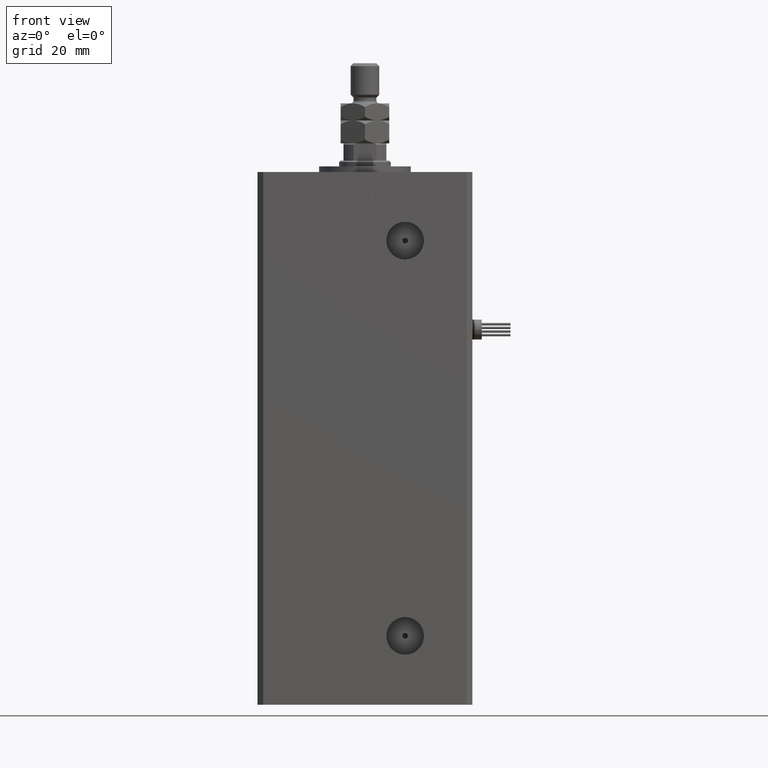
[diagram: clean part render]
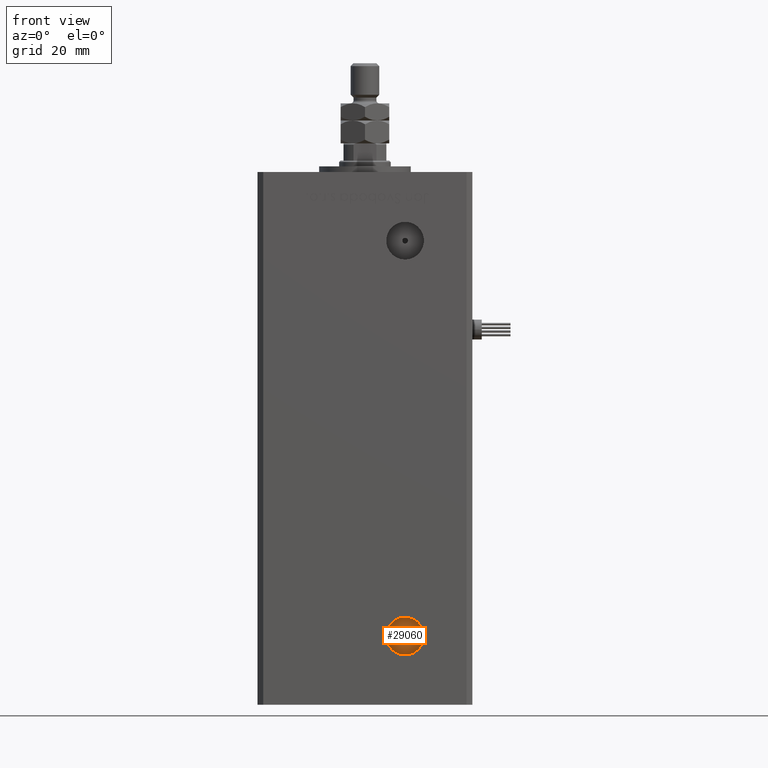
[diagram: same view with one face highlighted and labeled with its STEP entity id]
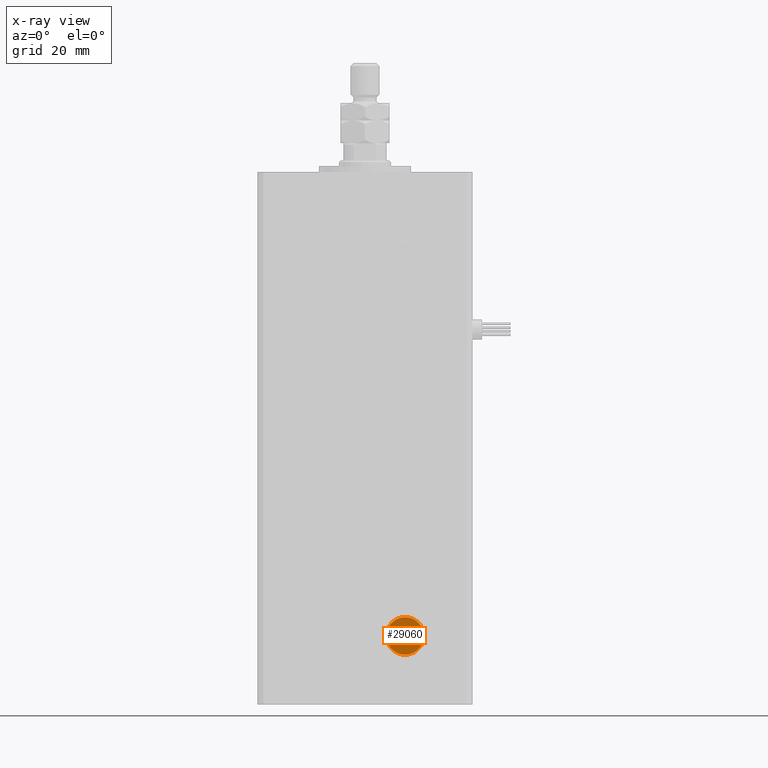
[diagram: x-ray of the same camera — body ghosted, the highlighted face saturated]
A machine part, front view. The second image highlights one B-rep face of the part: STEP entity #29060.
The next image is the same camera in x-ray: the body ghosted, the highlighted face saturated — about 0% of this face is hidden behind the body in this view.
In plain terms, the highlighted planar face has unit normal (0, -1, 0).
Its self-contained STEP definition (entity closure, byte-faithful):
#635 = CARTESIAN_POINT ( 'NONE',  ( 13.99999999999999112, -19.50000000000000355, 9.000000000000007105 ) ) ;
#1802 = VERTEX_POINT ( 'NONE', #13756 ) ;
#2303 = VERTEX_POINT ( 'NONE', #22262 ) ;
#2708 = CIRCLE ( 'NONE', #14585, 1.000000000000000888 ) ;
#4416 = PLANE ( 'NONE',  #41107 ) ;
#7588 = CIRCLE ( 'NONE', #44172, 6.579999999999998295 ) ;
#9958 = DIRECTION ( 'NONE',  ( 0.000000000000000000, 0.000000000000000000, -1.000000000000000000 ) ) ;
#12003 = CARTESIAN_POINT ( 'NONE',  ( 13.99999999999999112, -19.50000000000000355, 15.58000000000000718 ) ) ;
#12269 = CARTESIAN_POINT ( 'NONE',  ( 13.99999999999999112, -19.50000000000000355, 2.420000000000009699 ) ) ;
#12604 = AXIS2_PLACEMENT_3D ( 'NONE', #17995, #49271, #9958 ) ;
#13017 = FACE_BOUND ( 'NONE', #42806, .T. ) ;
#13756 = CARTESIAN_POINT ( 'NONE',  ( 13.99999999999999112, -19.50000000000000355, 8.000000000000007105 ) ) ;
#13766 = CARTESIAN_POINT ( 'NONE',  ( 13.99999999999999112, -19.50000000000000355, 9.000000000000007105 ) ) ;
#14083 = EDGE_CURVE ( 'NONE', #2303, #1802, #16729, .T. ) ;
#14585 = AXIS2_PLACEMENT_3D ( 'NONE', #13766, #35279, #53362 ) ;
#14932 = AXIS2_PLACEMENT_3D ( 'NONE', #21675, #39173, #56669 ) ;
#15737 = ORIENTED_EDGE ( 'NONE', *, *, #39679, .T. ) ;
#16240 = ORIENTED_EDGE ( 'NONE', *, *, #30722, .F. ) ;
#16729 = CIRCLE ( 'NONE', #14932, 1.000000000000000888 ) ;
#17995 = CARTESIAN_POINT ( 'NONE',  ( 13.99999999999999112, -19.50000000000000355, 9.000000000000007105 ) ) ;
#18136 = DIRECTION ( 'NONE',  ( 0.000000000000000000, 0.000000000000000000, -1.000000000000000000 ) ) ;
#18167 = FACE_OUTER_BOUND ( 'NONE', #56240, .T. ) ;
#18477 = ORIENTED_EDGE ( 'NONE', *, *, #22554, .T. ) ;
#21675 = CARTESIAN_POINT ( 'NONE',  ( 13.99999999999999112, -19.50000000000000355, 9.000000000000007105 ) ) ;
#22262 = CARTESIAN_POINT ( 'NONE',  ( 13.99999999999999112, -19.50000000000000355, 10.00000000000000888 ) ) ;
#22488 = CARTESIAN_POINT ( 'NONE',  ( 13.99999999999999112, -19.50000000000000355, 9.000000000000007105 ) ) ;
#22554 = EDGE_CURVE ( 'NONE', #48003, #26241, #23611, .T. ) ;
#23611 = CIRCLE ( 'NONE', #12604, 6.579999999999998295 ) ;
#26241 = VERTEX_POINT ( 'NONE', #12269 ) ;
#29060 = ADVANCED_FACE ( 'NONE', ( #13017, #18167 ), #4416, .T. ) ;
#30534 = DIRECTION ( 'NONE',  ( 0.000000000000000000, -0.000000000000000000, -1.000000000000000000 ) ) ;
#30722 = EDGE_CURVE ( 'NONE', #1802, #2303, #2708, .T. ) ;
#35279 = DIRECTION ( 'NONE',  ( 0.000000000000000000, -1.000000000000000000, 0.000000000000000000 ) ) ;
#39173 = DIRECTION ( 'NONE',  ( 0.000000000000000000, -1.000000000000000000, 0.000000000000000000 ) ) ;
#39679 = EDGE_CURVE ( 'NONE', #26241, #48003, #7588, .T. ) ;
#39800 = ORIENTED_EDGE ( 'NONE', *, *, #14083, .F. ) ;
#41107 = AXIS2_PLACEMENT_3D ( 'NONE', #22488, #53182, #30534 ) ;
#42806 = EDGE_LOOP ( 'NONE', ( #16240, #39800 ) ) ;
#44172 = AXIS2_PLACEMENT_3D ( 'NONE', #635, #49700, #18136 ) ;
#48003 = VERTEX_POINT ( 'NONE', #12003 ) ;
#49271 = DIRECTION ( 'NONE',  ( 0.000000000000000000, -1.000000000000000000, 0.000000000000000000 ) ) ;
#49700 = DIRECTION ( 'NONE',  ( 0.000000000000000000, -1.000000000000000000, 0.000000000000000000 ) ) ;
#53182 = DIRECTION ( 'NONE',  ( 0.000000000000000000, -1.000000000000000000, 0.000000000000000000 ) ) ;
#53362 = DIRECTION ( 'NONE',  ( 0.000000000000000000, 0.000000000000000000, -1.000000000000000000 ) ) ;
#56240 = EDGE_LOOP ( 'NONE', ( #15737, #18477 ) ) ;
#56669 = DIRECTION ( 'NONE',  ( 0.000000000000000000, 0.000000000000000000, -1.000000000000000000 ) ) ;